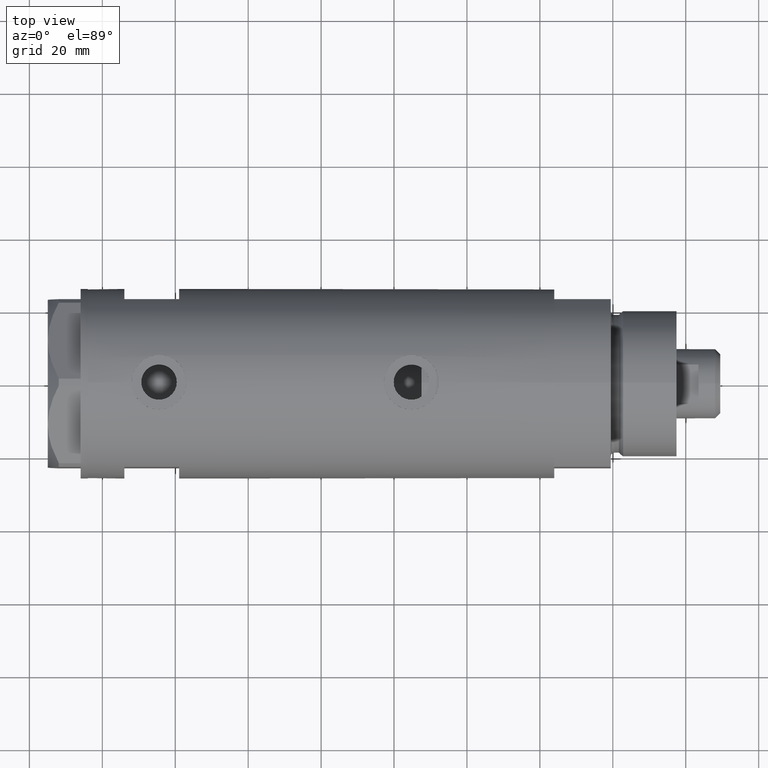
[diagram: clean part render]
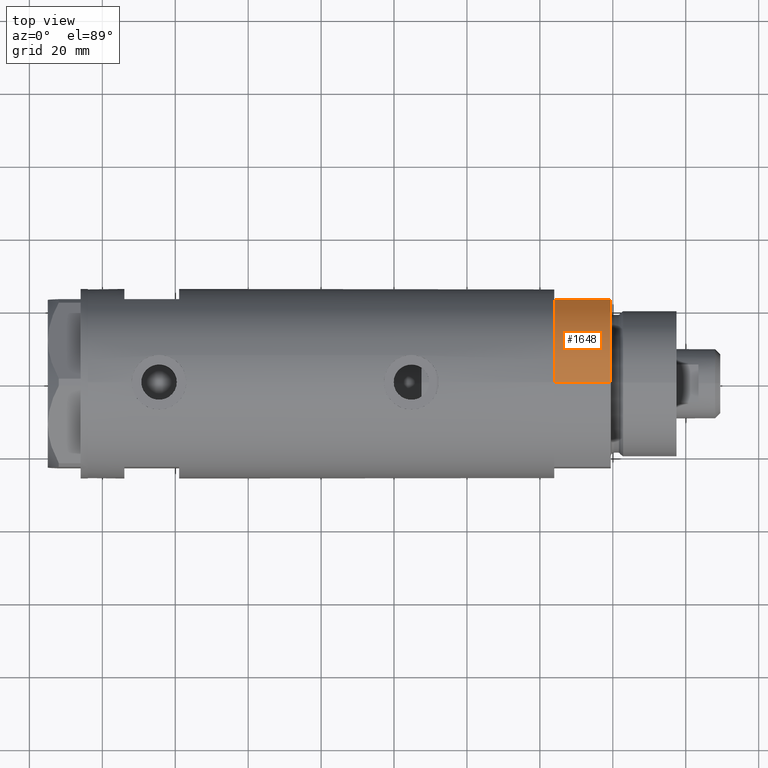
[diagram: same view with one face highlighted and labeled with its STEP entity id]
A machine part, top view. The second image highlights one B-rep face of the part: STEP entity #1648.
In plain terms, the highlighted cylindrical surface (partial cylindrical patch) has radius 26 mm, axis along (-1, -0, 0).
Its self-contained STEP definition (entity closure, byte-faithful):
#99 = LINE ( 'NONE', #3391, #2798 ) ;
#323 = CARTESIAN_POINT ( 'NONE',  ( 0.000000000000000000, 0.000000000000000000, 15.50000000000000000 ) ) ;
#742 = EDGE_LOOP ( 'NONE', ( #4156, #4612, #4341, #1810 ) ) ;
#1100 = DIRECTION ( 'NONE',  ( 0.000000000000000000, 0.000000000000000000, 1.000000000000000000 ) ) ;
#1283 = DIRECTION ( 'NONE',  ( -1.000000000000000000, 0.000000000000000000, 0.000000000000000000 ) ) ;
#1341 = CYLINDRICAL_SURFACE ( 'NONE', #4799, 26.00000000000000355 ) ;
#1522 = CIRCLE ( 'NONE', #4304, 26.00000000000000355 ) ;
#1539 = EDGE_CURVE ( 'NONE', #2962, #2422, #1522, .T. ) ;
#1648 = ADVANCED_FACE ( 'NONE', ( #4882 ), #1341, .T. ) ;
#1810 = ORIENTED_EDGE ( 'NONE', *, *, #1539, .T. ) ;
#1905 = EDGE_CURVE ( 'NONE', #5158, #2422, #99, .T. ) ;
#1916 = DIRECTION ( 'NONE',  ( 1.000000000000000000, 0.000000000000000000, 0.000000000000000000 ) ) ;
#1962 = CARTESIAN_POINT ( 'NONE',  ( -12.12435565298214613, 23.00000000000000355, 15.50000000000000000 ) ) ;
#2180 = CARTESIAN_POINT ( 'NONE',  ( -26.00000000000000355, 0.000000000000000000, 0.000000000000000000 ) ) ;
#2206 = DIRECTION ( 'NONE',  ( -0.000000000000000000, -0.000000000000000000, -1.000000000000000000 ) ) ;
#2401 = CIRCLE ( 'NONE', #4500, 26.00000000000000355 ) ;
#2422 = VERTEX_POINT ( 'NONE', #2180 ) ;
#2798 = VECTOR ( 'NONE', #2206, 1000.000000000000000 ) ;
#2869 = DIRECTION ( 'NONE',  ( 0.000000000000000000, 0.000000000000000000, 1.000000000000000000 ) ) ;
#2924 = CARTESIAN_POINT ( 'NONE',  ( 0.000000000000000000, 0.000000000000000000, 0.000000000000000000 ) ) ;
#2962 = VERTEX_POINT ( 'NONE', #3825 ) ;
#3043 = EDGE_CURVE ( 'NONE', #2962, #3783, #3920, .T. ) ;
#3391 = CARTESIAN_POINT ( 'NONE',  ( -26.00000000000000355, 0.000000000000000000, 15.50000000000000000 ) ) ;
#3584 = DIRECTION ( 'NONE',  ( -0.000000000000000000, -0.000000000000000000, 1.000000000000000000 ) ) ;
#3765 = DIRECTION ( 'NONE',  ( 1.000000000000000000, 0.000000000000000000, 0.000000000000000000 ) ) ;
#3783 = VERTEX_POINT ( 'NONE', #1962 ) ;
#3825 = CARTESIAN_POINT ( 'NONE',  ( -12.12435565298215145, 23.00000000000000355, 0.000000000000000000 ) ) ;
#3920 = LINE ( 'NONE', #5150, #4655 ) ;
#4045 = DIRECTION ( 'NONE',  ( -0.000000000000000000, -0.000000000000000000, -1.000000000000000000 ) ) ;
#4156 = ORIENTED_EDGE ( 'NONE', *, *, #1905, .F. ) ;
#4304 = AXIS2_PLACEMENT_3D ( 'NONE', #2924, #2869, #3765 ) ;
#4341 = ORIENTED_EDGE ( 'NONE', *, *, #3043, .F. ) ;
#4497 = CARTESIAN_POINT ( 'NONE',  ( -26.00000000000000355, 0.000000000000000000, 15.50000000000000000 ) ) ;
#4500 = AXIS2_PLACEMENT_3D ( 'NONE', #323, #1100, #1916 ) ;
#4547 = CARTESIAN_POINT ( 'NONE',  ( 0.000000000000000000, 0.000000000000000000, 15.50000000000000000 ) ) ;
#4612 = ORIENTED_EDGE ( 'NONE', *, *, #4841, .F. ) ;
#4655 = VECTOR ( 'NONE', #3584, 1000.000000000000000 ) ;
#4799 = AXIS2_PLACEMENT_3D ( 'NONE', #4547, #4045, #1283 ) ;
#4841 = EDGE_CURVE ( 'NONE', #3783, #5158, #2401, .T. ) ;
#4882 = FACE_OUTER_BOUND ( 'NONE', #742, .T. ) ;
#5150 = CARTESIAN_POINT ( 'NONE',  ( -12.12435565298215145, 23.00000000000000355, 0.000000000000000000 ) ) ;
#5158 = VERTEX_POINT ( 'NONE', #4497 ) ;